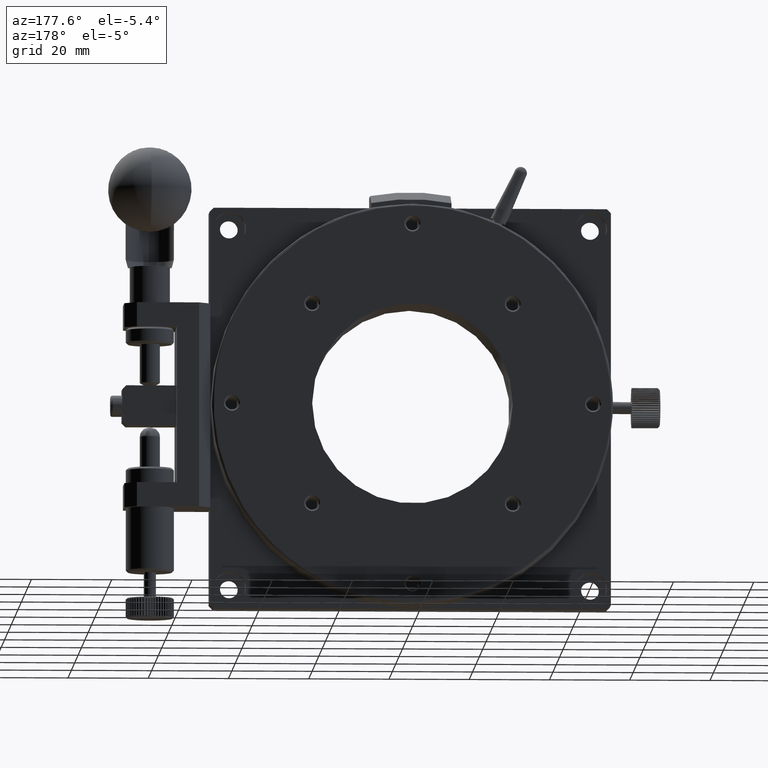
[diagram: clean part render]
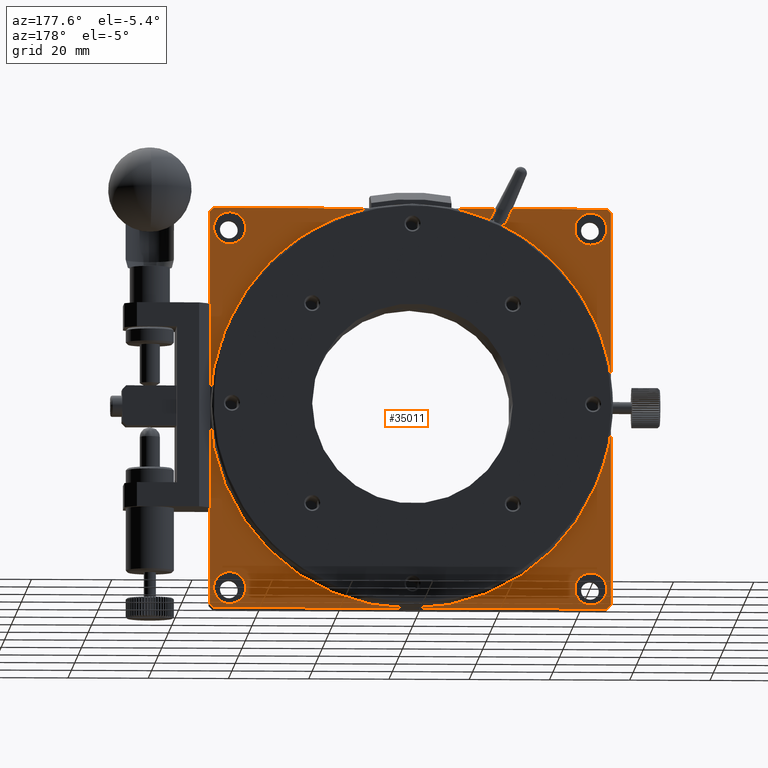
[diagram: same view with one face highlighted and labeled with its STEP entity id]
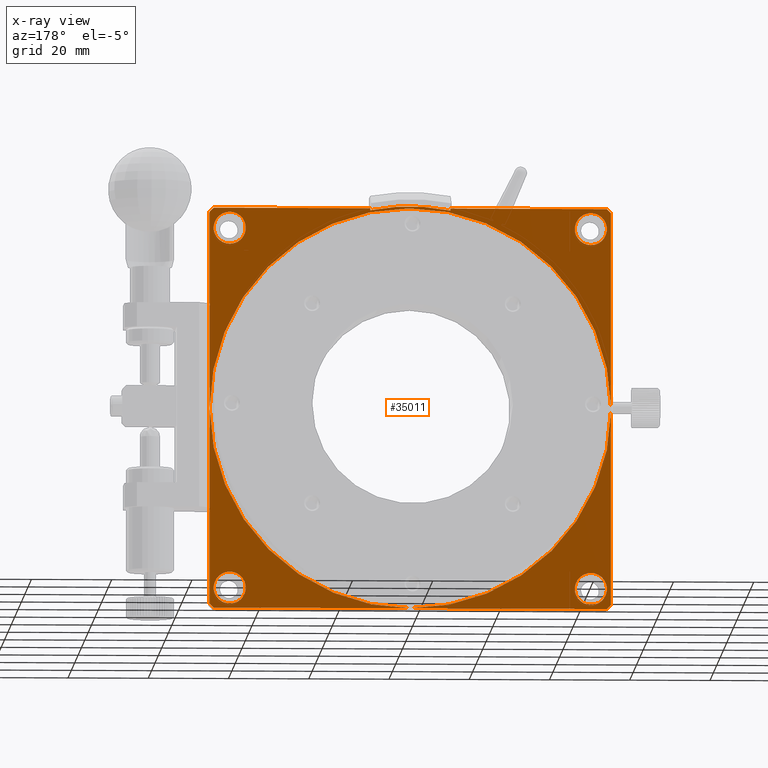
[diagram: x-ray of the same camera — body ghosted, the highlighted face saturated]
A machine part, auxiliary view. The second image highlights one B-rep face of the part: STEP entity #35011.
The next image is the same camera in x-ray: the body ghosted, the highlighted face saturated — about 0% of this face is hidden behind the body in this view.
In plain terms, the highlighted planar face has unit normal (0, 1, 0).
Its self-contained STEP definition (entity closure, byte-faithful):
#290 = CARTESIAN_POINT ( 'NONE',  ( -49.99773725805609814, 7.000000000000000888, -49.00042980575020124 ) ) ;
#457 = CARTESIAN_POINT ( 'NONE',  ( -48.99773725805611235, 7.000000000000000000, -50.00042980575020124 ) ) ;
#833 = DIRECTION ( 'NONE',  ( -0.000000000000000000, 0.000000000000000000, -1.000000000000000000 ) ) ;
#848 = LINE ( 'NONE', #30561, #82015 ) ;
#1930 = ORIENTED_EDGE ( 'NONE', *, *, #54439, .T. ) ;
#2637 = VECTOR ( 'NONE', #26388, 1000.000000000000000 ) ;
#2670 = DIRECTION ( 'NONE',  ( 0.000000000000000000, 0.000000000000000000, -1.000000000000000000 ) ) ;
#2776 = EDGE_CURVE ( 'NONE', #35794, #84302, #10452, .T. ) ;
#3053 = EDGE_CURVE ( 'NONE', #28026, #28026, #13757, .T. ) ;
#3110 = VERTEX_POINT ( 'NONE', #11846 ) ;
#3350 = EDGE_CURVE ( 'NONE', #73777, #94150, #68186, .T. ) ;
#3489 = VECTOR ( 'NONE', #89044, 1000.000000000000000 ) ;
#3515 = DIRECTION ( 'NONE',  ( -0.7071067811865474617, 0.000000000000000000, 0.7071067811865474617 ) ) ;
#3608 = CARTESIAN_POINT ( 'NONE',  ( 50.00226274194390186, 7.000000000000000888, -25.50000000000000355 ) ) ;
#4326 = VERTEX_POINT ( 'NONE', #14967 ) ;
#4334 = ORIENTED_EDGE ( 'NONE', *, *, #92003, .F. ) ;
#4355 = DIRECTION ( 'NONE',  ( 0.000000000000000000, 0.000000000000000000, -1.000000000000000000 ) ) ;
#4436 = AXIS2_PLACEMENT_3D ( 'NONE', #94583, #70651, #4355 ) ;
#5972 = VECTOR ( 'NONE', #2670, 1000.000000000000000 ) ;
#6108 = ORIENTED_EDGE ( 'NONE', *, *, #77176, .T. ) ;
#6378 = DIRECTION ( 'NONE',  ( 0.000000000000000000, 0.000000000000000000, -1.000000000000000000 ) ) ;
#6481 = LINE ( 'NONE', #20600, #77950 ) ;
#6733 = ORIENTED_EDGE ( 'NONE', *, *, #65967, .T. ) ;
#7366 = LINE ( 'NONE', #15655, #83375 ) ;
#7593 = DIRECTION ( 'NONE',  ( -0.000000000000000000, -0.000000000000000000, 1.000000000000000000 ) ) ;
#7767 = CARTESIAN_POINT ( 'NONE',  ( 50.00226274194389475, 7.000000000000000000, 48.99957019424980587 ) ) ;
#8264 = VERTEX_POINT ( 'NONE', #48125 ) ;
#8318 = DIRECTION ( 'NONE',  ( 1.000000000000000000, 0.000000000000000000, -0.000000000000000000 ) ) ;
#8399 = VERTEX_POINT ( 'NONE', #73452 ) ;
#8456 = CARTESIAN_POINT ( 'NONE',  ( 50.00226274194390186, 7.000000000000002665, -49.00042980575020124 ) ) ;
#8906 = DIRECTION ( 'NONE',  ( 0.000000000000000000, 0.000000000000000000, 1.000000000000000000 ) ) ;
#10452 = LINE ( 'NONE', #70882, #5972 ) ;
#11846 = CARTESIAN_POINT ( 'NONE',  ( 45.00226274194390186, 7.000000000000000000, -49.00042980575020124 ) ) ;
#11992 = AXIS2_PLACEMENT_3D ( 'NONE', #54609, #61933, #47301 ) ;
#12489 = DIRECTION ( 'NONE',  ( -1.000000000000000000, 0.000000000000000000, -0.000000000000000000 ) ) ;
#12626 = CARTESIAN_POINT ( 'NONE',  ( -44.99773725805609814, 7.000000000000000000, 44.99957019424979876 ) ) ;
#13014 = EDGE_LOOP ( 'NONE', ( #38232 ) ) ;
#13757 = CIRCLE ( 'NONE', #4436, 4.000000000000003553 ) ;
#14832 = EDGE_LOOP ( 'NONE', ( #51581 ) ) ;
#14900 = DIRECTION ( 'NONE',  ( -0.000000000000000000, 0.000000000000000000, -1.000000000000000000 ) ) ;
#14967 = CARTESIAN_POINT ( 'NONE',  ( -49.99773725805609104, 6.999999999999999112, 0.4756774898927791928 ) ) ;
#15655 = CARTESIAN_POINT ( 'NONE',  ( -49.99773725805609814, 7.000000000000000888, -49.00042980575020124 ) ) ;
#15837 = VERTEX_POINT ( 'NONE', #17735 ) ;
#16001 = DIRECTION ( 'NONE',  ( -0.000000000000000000, 0.000000000000000000, -1.000000000000000000 ) ) ;
#16244 = CARTESIAN_POINT ( 'NONE',  ( 0.000000000000000000, 6.999999999999999112, 0.000000000000000000 ) ) ;
#16254 = DIRECTION ( 'NONE',  ( -0.7071067811865474617, -0.000000000000000000, -0.7071067811865474617 ) ) ;
#17222 = LINE ( 'NONE', #8456, #91243 ) ;
#17735 = CARTESIAN_POINT ( 'NONE',  ( -44.99773725805609814, 7.000000000000000000, 40.99957019424979876 ) ) ;
#18056 = ORIENTED_EDGE ( 'NONE', *, *, #74035, .T. ) ;
#18819 = CARTESIAN_POINT ( 'NONE',  ( 50.10000000000010090, 7.000000000000000000, -5.000429805750170154 ) ) ;
#19742 = VERTEX_POINT ( 'NONE', #7767 ) ;
#20385 = CARTESIAN_POINT ( 'NONE',  ( 50.10000000000010090, 7.000000000000000000, 4.999570194249829846 ) ) ;
#20600 = CARTESIAN_POINT ( 'NONE',  ( 50.00226274194390186, 7.000000000000000000, 0.000000000000000000 ) ) ;
#20968 = CARTESIAN_POINT ( 'NONE',  ( 45.00226274194390186, 7.000000000000000000, -45.00042980575020124 ) ) ;
#20985 = ORIENTED_EDGE ( 'NONE', *, *, #73562, .T. ) ;
#21465 = CARTESIAN_POINT ( 'NONE',  ( 49.00226274194390186, 7.000000000000000000, 49.99957019424979876 ) ) ;
#21798 = ORIENTED_EDGE ( 'NONE', *, *, #56237, .F. ) ;
#21840 = ORIENTED_EDGE ( 'NONE', *, *, #29131, .T. ) ;
#23443 = ORIENTED_EDGE ( 'NONE', *, *, #75779, .T. ) ;
#24170 = EDGE_CURVE ( 'NONE', #78377, #73777, #77312, .T. ) ;
#24224 = AXIS2_PLACEMENT_3D ( 'NONE', #16244, #45997, #8906 ) ;
#24322 = CIRCLE ( 'NONE', #85065, 3.999999999999996447 ) ;
#24871 = PLANE ( 'NONE',  #11992 ) ;
#24981 = LINE ( 'NONE', #53755, #76852 ) ;
#25331 = FACE_BOUND ( 'NONE', #14832, .T. ) ;
#25502 = ORIENTED_EDGE ( 'NONE', *, *, #94232, .T. ) ;
#26093 = ORIENTED_EDGE ( 'NONE', *, *, #34852, .T. ) ;
#26263 = DIRECTION ( 'NONE',  ( 0.000000000000000000, -1.000000000000000000, 0.000000000000000000 ) ) ;
#26385 = CARTESIAN_POINT ( 'NONE',  ( 10.00000000000000000, 7.000000000000000000, 54.08326913195990215 ) ) ;
#26388 = DIRECTION ( 'NONE',  ( 1.000000000000000000, -0.000000000000000000, 0.000000000000000000 ) ) ;
#28026 = VERTEX_POINT ( 'NONE', #28512 ) ;
#28347 = ORIENTED_EDGE ( 'NONE', *, *, #24170, .T. ) ;
#28512 = CARTESIAN_POINT ( 'NONE',  ( 45.00226274194390186, 7.000000000000000000, 40.99957019424979876 ) ) ;
#29131 = EDGE_CURVE ( 'NONE', #88515, #96451, #7366, .T. ) ;
#29476 = VERTEX_POINT ( 'NONE', #40214 ) ;
#29535 = DIRECTION ( 'NONE',  ( -0.000000000000000000, 1.000000000000000000, -0.000000000000000000 ) ) ;
#29744 = LINE ( 'NONE', #21465, #72203 ) ;
#30013 = CARTESIAN_POINT ( 'NONE',  ( 50.00226274194390186, 7.000000000000000000, 0.000000000000000000 ) ) ;
#30561 = CARTESIAN_POINT ( 'NONE',  ( -49.99773725805609814, 7.000000000000000000, 48.99957019424980587 ) ) ;
#30704 = CARTESIAN_POINT ( 'NONE',  ( -48.99773725805609814, 7.000000000000000888, 49.99957019424979876 ) ) ;
#32142 = AXIS2_PLACEMENT_3D ( 'NONE', #12626, #57971, #80377 ) ;
#32358 = CARTESIAN_POINT ( 'NONE',  ( 10.00000000000000000, 6.999999999999999112, 49.50000000000000000 ) ) ;
#32658 = CARTESIAN_POINT ( 'NONE',  ( -10.00000000000000178, 7.000000000000000000, 49.99957019424979876 ) ) ;
#33164 = EDGE_CURVE ( 'NONE', #8399, #35794, #58080, .T. ) ;
#33692 = CARTESIAN_POINT ( 'NONE',  ( -48.99773725805609814, 7.000000000000000888, 49.99957019424979876 ) ) ;
#34013 = CIRCLE ( 'NONE', #57439, 3.999999999999996447 ) ;
#34852 = EDGE_CURVE ( 'NONE', #78042, #95964, #48838, .T. ) ;
#35011 = ADVANCED_FACE ( 'NONE', ( #62882, #25331, #54129, #46830, #91212 ), #24871, .T. ) ;
#35080 = ORIENTED_EDGE ( 'NONE', *, *, #91544, .T. ) ;
#35794 = VERTEX_POINT ( 'NONE', #32658 ) ;
#35991 = VERTEX_POINT ( 'NONE', #457 ) ;
#36029 = EDGE_CURVE ( 'NONE', #43219, #35991, #83317, .T. ) ;
#36359 = LINE ( 'NONE', #30013, #3489 ) ;
#36361 = CARTESIAN_POINT ( 'NONE',  ( 0.000000000000000000, 6.999999999999999112, 0.000000000000000000 ) ) ;
#36818 = CIRCLE ( 'NONE', #32142, 4.000000000000003553 ) ;
#37419 = ORIENTED_EDGE ( 'NONE', *, *, #33164, .T. ) ;
#38027 = ORIENTED_EDGE ( 'NONE', *, *, #71586, .T. ) ;
#38232 = ORIENTED_EDGE ( 'NONE', *, *, #3053, .T. ) ;
#38476 = VECTOR ( 'NONE', #64939, 1000.000000000000000 ) ;
#38945 = CIRCLE ( 'NONE', #45226, 50.00000000000000000 ) ;
#39593 = LINE ( 'NONE', #46459, #68494 ) ;
#39792 = VERTEX_POINT ( 'NONE', #18819 ) ;
#40214 = CARTESIAN_POINT ( 'NONE',  ( 50.10000000000010090, 7.000000000000000000, -25.50000000000000355 ) ) ;
#40619 = CARTESIAN_POINT ( 'NONE',  ( 50.00226274194390186, 7.000000000000000000, 4.999570194249829846 ) ) ;
#40856 = CARTESIAN_POINT ( 'NONE',  ( 10.00000000000000178, 7.000000000000001776, 49.99957019424979876 ) ) ;
#41376 = DIRECTION ( 'NONE',  ( 0.000000000000000000, 0.000000000000000000, -1.000000000000000000 ) ) ;
#42574 = DIRECTION ( 'NONE',  ( -1.000000000000000000, -0.000000000000000000, 0.000000000000000000 ) ) ;
#43219 = VERTEX_POINT ( 'NONE', #60736 ) ;
#44676 = ORIENTED_EDGE ( 'NONE', *, *, #2776, .T. ) ;
#44875 = DIRECTION ( 'NONE',  ( 1.000000000000000000, -0.000000000000000000, 0.000000000000000000 ) ) ;
#45226 = AXIS2_PLACEMENT_3D ( 'NONE', #36361, #29535, #59292 ) ;
#45335 = EDGE_LOOP ( 'NONE', ( #1930, #21798, #28347, #79955, #25502, #6733, #18056, #35080, #38027, #23443, #85329, #68007, #21840, #4334, #6108, #62812, #37419, #44676, #90550, #26093, #20985, #89487 ) ) ;
#45392 = LINE ( 'NONE', #75135, #67439 ) ;
#45838 = LINE ( 'NONE', #30704, #77119 ) ;
#45972 = DIRECTION ( 'NONE',  ( -1.000000000000000000, -0.000000000000000000, 0.000000000000000000 ) ) ;
#45997 = DIRECTION ( 'NONE',  ( 0.000000000000000000, 1.000000000000000000, 0.000000000000000000 ) ) ;
#46459 = CARTESIAN_POINT ( 'NONE',  ( 0.000000000000000000, 7.000000000000000000, -25.50000000000000355 ) ) ;
#46542 = VERTEX_POINT ( 'NONE', #89963 ) ;
#46830 = FACE_BOUND ( 'NONE', #89367, .T. ) ;
#47301 = DIRECTION ( 'NONE',  ( 0.000000000000000000, -0.000000000000000000, 1.000000000000000000 ) ) ;
#48125 = CARTESIAN_POINT ( 'NONE',  ( 50.00226274194390186, 7.000000000000002665, -49.00042980575020124 ) ) ;
#48454 = CARTESIAN_POINT ( 'NONE',  ( -10.00000000000000000, 6.999999999999999112, 49.50000000000000000 ) ) ;
#48838 = LINE ( 'NONE', #26385, #38476 ) ;
#49011 = VECTOR ( 'NONE', #16001, 1000.000000000000000 ) ;
#50734 = DIRECTION ( 'NONE',  ( 0.000000000000000000, -1.000000000000000000, 0.000000000000000000 ) ) ;
#51270 = DIRECTION ( 'NONE',  ( -0.000000000000000000, -0.000000000000000000, 1.000000000000000000 ) ) ;
#51532 = EDGE_CURVE ( 'NONE', #46542, #46542, #34013, .T. ) ;
#51581 = ORIENTED_EDGE ( 'NONE', *, *, #51532, .T. ) ;
#52287 = VECTOR ( 'NONE', #42574, 1000.000000000000000 ) ;
#52423 = CARTESIAN_POINT ( 'NONE',  ( 50.00226274194390186, 7.000000000000000000, -5.000429805750170154 ) ) ;
#52744 = VECTOR ( 'NONE', #12489, 1000.000000000000000 ) ;
#53755 = CARTESIAN_POINT ( 'NONE',  ( -48.99773725805609814, 7.000000000000000000, -50.00042980575020124 ) ) ;
#54067 = VERTEX_POINT ( 'NONE', #89142 ) ;
#54129 = FACE_BOUND ( 'NONE', #72511, .T. ) ;
#54439 = EDGE_CURVE ( 'NONE', #19742, #69435, #36359, .T. ) ;
#54609 = CARTESIAN_POINT ( 'NONE',  ( 0.000000000000000000, 7.000000000000000000, 0.000000000000000000 ) ) ;
#54862 = EDGE_CURVE ( 'NONE', #84302, #78042, #69328, .T. ) ;
#55953 = VERTEX_POINT ( 'NONE', #3608 ) ;
#56237 = EDGE_CURVE ( 'NONE', #78377, #69435, #58666, .T. ) ;
#57369 = CARTESIAN_POINT ( 'NONE',  ( -49.99773725805609814, 7.000000000000001776, -49.00042980575020124 ) ) ;
#57439 = AXIS2_PLACEMENT_3D ( 'NONE', #73094, #26263, #41376 ) ;
#57749 = EDGE_CURVE ( 'NONE', #15837, #15837, #36818, .T. ) ;
#57971 = DIRECTION ( 'NONE',  ( 0.000000000000000000, -1.000000000000000000, 0.000000000000000000 ) ) ;
#58080 = LINE ( 'NONE', #33692, #2637 ) ;
#58666 = LINE ( 'NONE', #88912, #52287 ) ;
#59292 = DIRECTION ( 'NONE',  ( 0.000000000000000000, 0.000000000000000000, -1.000000000000000000 ) ) ;
#59417 = LINE ( 'NONE', #89172, #49011 ) ;
#60256 = VECTOR ( 'NONE', #91619, 1000.000000000000000 ) ;
#60311 = DIRECTION ( 'NONE',  ( 0.7071067811865500152, 0.000000000000000000, 0.7071067811865451302 ) ) ;
#60346 = CARTESIAN_POINT ( 'NONE',  ( -49.99773725805609814, 7.000000000000001776, 48.99957019424980587 ) ) ;
#60736 = CARTESIAN_POINT ( 'NONE',  ( 49.00226274194390896, 7.000000000000001776, -50.00042980575020124 ) ) ;
#61933 = DIRECTION ( 'NONE',  ( 0.000000000000000000, 1.000000000000000000, 0.000000000000000000 ) ) ;
#62812 = ORIENTED_EDGE ( 'NONE', *, *, #79693, .T. ) ;
#62882 = FACE_OUTER_BOUND ( 'NONE', #45335, .T. ) ;
#64864 = VECTOR ( 'NONE', #7593, 1000.000000000000000 ) ;
#64906 = CARTESIAN_POINT ( 'NONE',  ( 50.10000000000010090, 7.000000000000000000, 25.50000000000000355 ) ) ;
#64939 = DIRECTION ( 'NONE',  ( 0.000000000000000000, 0.000000000000000000, 1.000000000000000000 ) ) ;
#65379 = VERTEX_POINT ( 'NONE', #60346 ) ;
#65506 = DIRECTION ( 'NONE',  ( -0.000000000000000000, 0.000000000000000000, -1.000000000000000000 ) ) ;
#65967 = EDGE_CURVE ( 'NONE', #78000, #39792, #45392, .T. ) ;
#66613 = CARTESIAN_POINT ( 'NONE',  ( 50.10000000000010090, 7.000000000000000000, 0.000000000000000000 ) ) ;
#67439 = VECTOR ( 'NONE', #8318, 1000.000000000000000 ) ;
#68007 = ORIENTED_EDGE ( 'NONE', *, *, #68672, .T. ) ;
#68186 = LINE ( 'NONE', #78300, #52744 ) ;
#68208 = EDGE_CURVE ( 'NONE', #54067, #19742, #29744, .T. ) ;
#68494 = VECTOR ( 'NONE', #45972, 1000.000000000000000 ) ;
#68672 = EDGE_CURVE ( 'NONE', #35991, #88515, #24981, .T. ) ;
#68702 = CARTESIAN_POINT ( 'NONE',  ( 0.000000000000000000, 7.000000000000000000, -50.00042980575020124 ) ) ;
#69212 = ORIENTED_EDGE ( 'NONE', *, *, #76701, .T. ) ;
#69328 = CIRCLE ( 'NONE', #24224, 50.50000000000000000 ) ;
#69435 = VERTEX_POINT ( 'NONE', #90392 ) ;
#70651 = DIRECTION ( 'NONE',  ( 0.000000000000000000, -1.000000000000000000, 0.000000000000000000 ) ) ;
#70882 = CARTESIAN_POINT ( 'NONE',  ( -10.00000000000000000, 7.000000000000000000, 48.98979485566359671 ) ) ;
#71586 = EDGE_CURVE ( 'NONE', #55953, #8264, #59417, .T. ) ;
#72203 = VECTOR ( 'NONE', #79972, 1000.000000000000114 ) ;
#72511 = EDGE_LOOP ( 'NONE', ( #69212 ) ) ;
#73094 = CARTESIAN_POINT ( 'NONE',  ( -44.99773725805609814, 7.000000000000000000, -45.00042980575020124 ) ) ;
#73452 = CARTESIAN_POINT ( 'NONE',  ( -48.99773725805609814, 7.000000000000001776, 49.99957019424979876 ) ) ;
#73562 = EDGE_CURVE ( 'NONE', #95964, #54067, #45838, .T. ) ;
#73777 = VERTEX_POINT ( 'NONE', #20385 ) ;
#74035 = EDGE_CURVE ( 'NONE', #39792, #29476, #80213, .T. ) ;
#75135 = CARTESIAN_POINT ( 'NONE',  ( 71.00226274194389475, 7.000000000000000000, -5.000429805750170154 ) ) ;
#75548 = VECTOR ( 'NONE', #14900, 1000.000000000000000 ) ;
#75779 = EDGE_CURVE ( 'NONE', #8264, #43219, #17222, .T. ) ;
#75899 = CARTESIAN_POINT ( 'NONE',  ( -49.99773725805609104, 6.999999999999999112, -0.4756774898927694784 ) ) ;
#76701 = EDGE_CURVE ( 'NONE', #3110, #3110, #24322, .T. ) ;
#76852 = VECTOR ( 'NONE', #3515, 1000.000000000000114 ) ;
#77119 = VECTOR ( 'NONE', #44875, 1000.000000000000000 ) ;
#77176 = EDGE_CURVE ( 'NONE', #4326, #65379, #84113, .T. ) ;
#77312 = LINE ( 'NONE', #91036, #87644 ) ;
#77950 = VECTOR ( 'NONE', #65506, 1000.000000000000000 ) ;
#77982 = ORIENTED_EDGE ( 'NONE', *, *, #57749, .T. ) ;
#78000 = VERTEX_POINT ( 'NONE', #52423 ) ;
#78042 = VERTEX_POINT ( 'NONE', #32358 ) ;
#78300 = CARTESIAN_POINT ( 'NONE',  ( 50.00226274194390186, 7.000000000000000000, 4.999570194249829846 ) ) ;
#78377 = VERTEX_POINT ( 'NONE', #64906 ) ;
#79693 = EDGE_CURVE ( 'NONE', #65379, #8399, #848, .T. ) ;
#79955 = ORIENTED_EDGE ( 'NONE', *, *, #3350, .T. ) ;
#79972 = DIRECTION ( 'NONE',  ( 0.7071067811865500152, 0.000000000000000000, -0.7071067811865451302 ) ) ;
#80213 = LINE ( 'NONE', #66613, #75548 ) ;
#80377 = DIRECTION ( 'NONE',  ( 0.000000000000000000, 0.000000000000000000, -1.000000000000000000 ) ) ;
#82015 = VECTOR ( 'NONE', #60311, 1000.000000000000114 ) ;
#83317 = LINE ( 'NONE', #68702, #60256 ) ;
#83375 = VECTOR ( 'NONE', #51270, 1000.000000000000000 ) ;
#84113 = LINE ( 'NONE', #290, #64864 ) ;
#84302 = VERTEX_POINT ( 'NONE', #48454 ) ;
#85065 = AXIS2_PLACEMENT_3D ( 'NONE', #20968, #50734, #6378 ) ;
#85329 = ORIENTED_EDGE ( 'NONE', *, *, #36029, .T. ) ;
#87644 = VECTOR ( 'NONE', #833, 1000.000000000000000 ) ;
#88515 = VERTEX_POINT ( 'NONE', #57369 ) ;
#88912 = CARTESIAN_POINT ( 'NONE',  ( 0.000000000000000000, 7.000000000000000000, 25.50000000000000355 ) ) ;
#89044 = DIRECTION ( 'NONE',  ( -0.000000000000000000, 0.000000000000000000, -1.000000000000000000 ) ) ;
#89142 = CARTESIAN_POINT ( 'NONE',  ( 49.00226274194390896, 7.000000000000001776, 49.99957019424980587 ) ) ;
#89172 = CARTESIAN_POINT ( 'NONE',  ( 50.00226274194390186, 7.000000000000000000, 0.000000000000000000 ) ) ;
#89367 = EDGE_LOOP ( 'NONE', ( #77982 ) ) ;
#89487 = ORIENTED_EDGE ( 'NONE', *, *, #68208, .T. ) ;
#89963 = CARTESIAN_POINT ( 'NONE',  ( -44.99773725805609814, 7.000000000000000000, -49.00042980575020124 ) ) ;
#90392 = CARTESIAN_POINT ( 'NONE',  ( 50.00226274194390186, 7.000000000000000888, 25.50000000000000355 ) ) ;
#90550 = ORIENTED_EDGE ( 'NONE', *, *, #54862, .T. ) ;
#91036 = CARTESIAN_POINT ( 'NONE',  ( 50.10000000000010090, 7.000000000000000000, 0.000000000000000000 ) ) ;
#91212 = FACE_BOUND ( 'NONE', #13014, .T. ) ;
#91243 = VECTOR ( 'NONE', #16254, 1000.000000000000114 ) ;
#91544 = EDGE_CURVE ( 'NONE', #29476, #55953, #39593, .T. ) ;
#91619 = DIRECTION ( 'NONE',  ( -1.000000000000000000, -0.000000000000000000, 0.000000000000000000 ) ) ;
#92003 = EDGE_CURVE ( 'NONE', #4326, #96451, #38945, .T. ) ;
#94150 = VERTEX_POINT ( 'NONE', #40619 ) ;
#94232 = EDGE_CURVE ( 'NONE', #94150, #78000, #6481, .T. ) ;
#94583 = CARTESIAN_POINT ( 'NONE',  ( 45.00226274194390186, 7.000000000000000000, 44.99957019424979876 ) ) ;
#95964 = VERTEX_POINT ( 'NONE', #40856 ) ;
#96451 = VERTEX_POINT ( 'NONE', #75899 ) ;